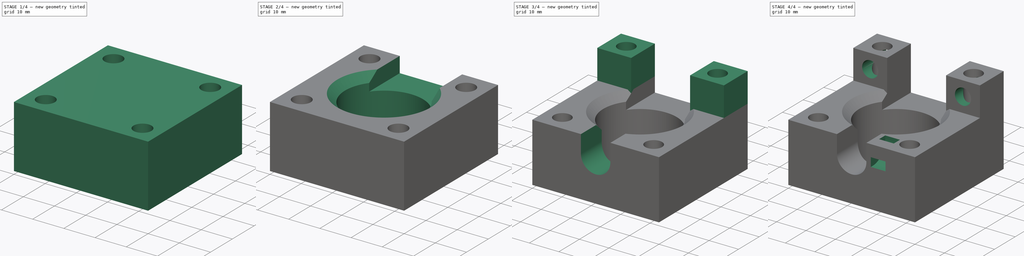
[diagram: build sequence overview — one tinted view per stage of 4, left to right]
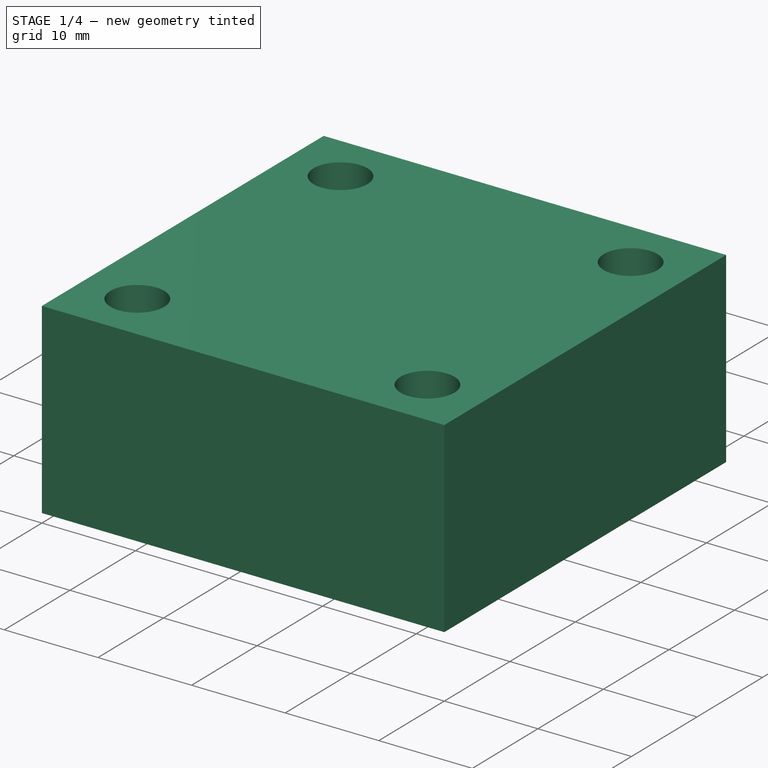
[diagram: stage 1 of 4 — iso view after this stage's code; geometry added in this stage tinted green]
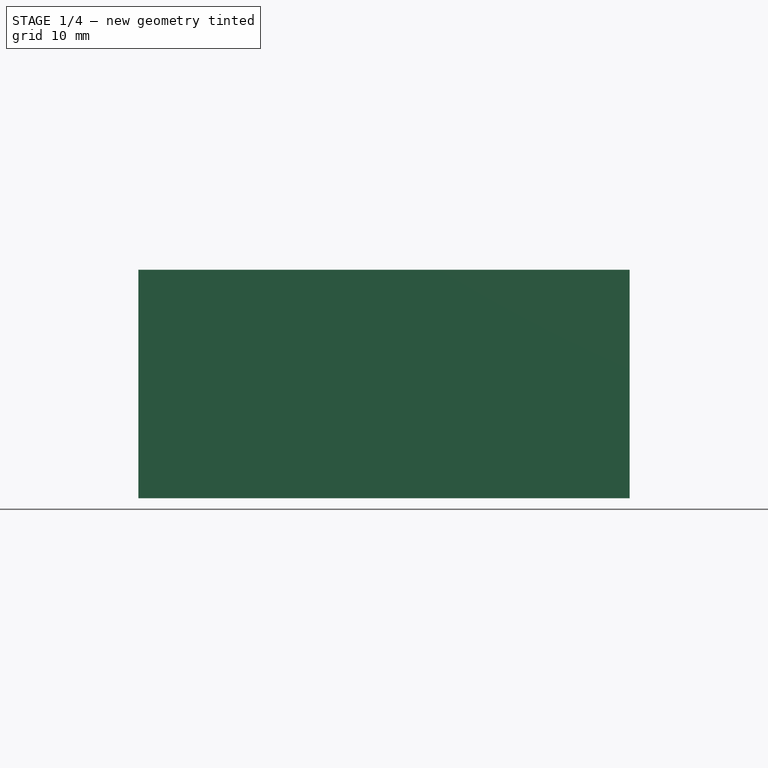
[diagram: stage 1 of 4 — front view after this stage's code; geometry added in this stage tinted green]
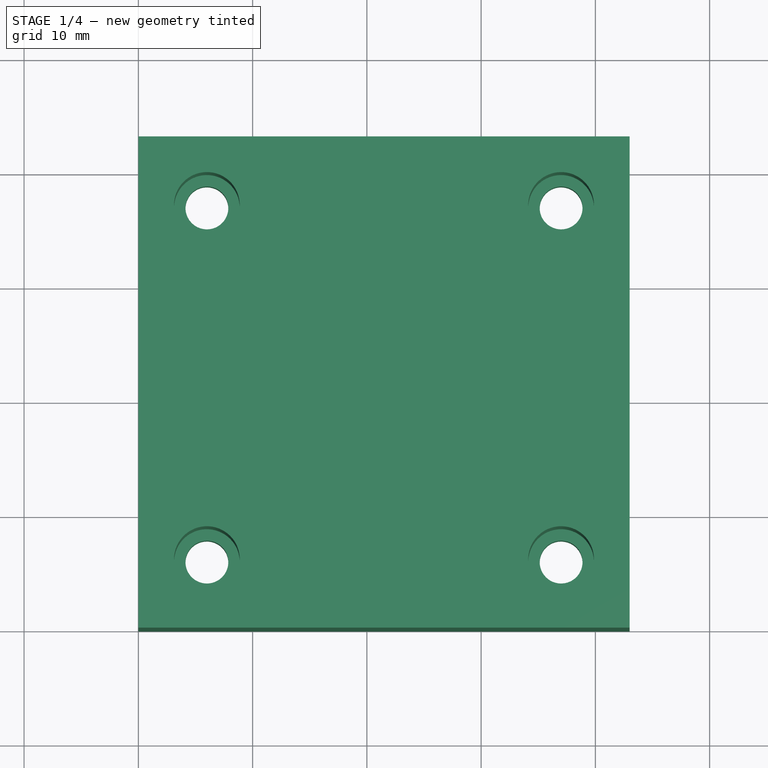
[diagram: stage 1 of 4 — top view after this stage's code; geometry added in this stage tinted green]
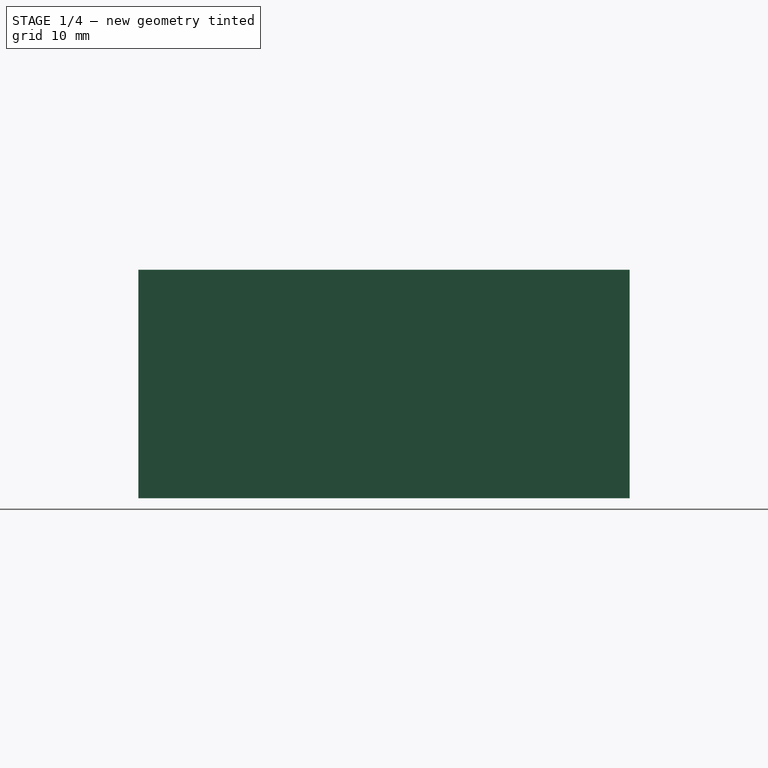
[diagram: stage 1 of 4 — right view after this stage's code; geometry added in this stage tinted green]
FCSTD DOCUMENT  (FreeCAD 0.20R29177 (Git))
Label: Y motor support
License: All rights reserved
LicenseURL: http://en.wikipedia.org/wiki/All_rights_reserved
objects: Sketcher::SketchObject×9, PartDesign::Hole×4, PartDesign::Pocket×3, PartDesign::Pad×2, PartDesign::Body×1
note: 28 computed .brp shape members not serialized (recipe doc carries the construction recipe); baked Part::Feature solids carry a one-line shape summary decoded from their .brp

FEATURE [Sketcher::SketchObject] Sketch
  FullyConstrained = true
  MapMode = 5
  Support = -> [XY_Plane]
  sketch-geometry (4):
    g0: LineSegment StartX=0 StartY=0 StartZ=0 EndX=43 EndY=0 EndZ=0
    g1: LineSegment StartX=43 StartY=0 StartZ=0 EndX=43 EndY=43 EndZ=0
    g2: LineSegment StartX=43 StartY=43 StartZ=0 EndX=0 EndY=43 EndZ=0
    g3: LineSegment StartX=0 StartY=43 StartZ=0 EndX=0 EndY=0 EndZ=0
  constraints (11):
    c: Coincident(g0,g1)
    c: Coincident(g1,g2)
    c: Coincident(g2,g3)
    c: Coincident(g3,g0)
    c: Horizontal(g0)
    c: Horizontal(g2)
    c: Vertical(g1)
    c: Vertical(g3)
    c: Coincident(g0,g-1)
    c: DistanceY(g1,g1) = 43
    c: Equal(g2,g1)
FEATURE [PartDesign::Pad] Pad
  Direction = (1,1,1)
  Length = 20
  Length2 = 100
  Profile = -> Sketch
  Type = 0
FEATURE [Sketcher::SketchObject] Sketch001
  ExternalGeometry = -> [Pad]
  FullyConstrained = false
  MapMode = 5
  Placement = pos=(0,0,20) rot=(0,0,1;0rad)
  Support = -> [Pad]
  sketch-geometry (10):
    g0: LineSegment StartX=6 StartY=37 StartZ=0 EndX=37 EndY=37 EndZ=0
    g1: LineSegment StartX=37 StartY=37 StartZ=0 EndX=37 EndY=6 EndZ=0
    g2: LineSegment StartX=37 StartY=6 StartZ=0 EndX=6 EndY=6 EndZ=0
    g3: LineSegment StartX=6 StartY=6 StartZ=0 EndX=6 EndY=37 EndZ=0
    g4: Circle CenterX=6 CenterY=37 CenterZ=0 NormalX=0 NormalY=0 NormalZ=1 AngleXU=0 Radius=1.89004
    g5: Circle CenterX=37 CenterY=37 CenterZ=0 NormalX=0 NormalY=0 NormalZ=1 AngleXU=0 Radius=1.89004
    g6: Circle CenterX=37 CenterY=6 CenterZ=0 NormalX=0 NormalY=0 NormalZ=1 AngleXU=0 Radius=1.89004
    g7: Circle CenterX=6 CenterY=6 CenterZ=0 NormalX=0 NormalY=0 NormalZ=1 AngleXU=0 Radius=1.89004
    g8: LineSegment StartX=0 StartY=43 StartZ=0 EndX=6 EndY=37 EndZ=0
    g9: LineSegment StartX=37 StartY=6 StartZ=0 EndX=43 EndY=0 EndZ=0
  constraints (23):
    c: Coincident(g0,g1)
    c: Coincident(g1,g2)
    c: Coincident(g2,g3)
    c: Coincident(g3,g0)
    c: Horizontal(g0)
    c: Horizontal(g2)
    c: Vertical(g1)
    c: Vertical(g3)
    c: Coincident(g4,g0)
    c: Coincident(g5,g0)
    c: Coincident(g6,g1)
    c: Coincident(g7,g2)
    c: Equal(g5,g7)
    c: Equal(g4,g6)
    c: Equal(g4,g5)
    c: Coincident(g8,g-3)
    c: Coincident(g8,g4)
    c: Coincident(g9,g6)
    c: Coincident(g9,g-4)
    c: Equal(g9,g8)
    c: Parallel(g8,g9)
    c: Equal(g1,g0)
    c: DistanceY(g3,g3) = 31
FEATURE [PartDesign::Hole] Hole  label="Hole 4x"
  BaseFeature = -> Pad
  CustomThreadClearance = 0
  Depth = 25
  DepthType = 1
  Diameter = 3.75
  DrillForDepth = false
  DrillPoint = 1
  DrillPointAngle = 118
  HoleCutCountersinkAngle = 90
  HoleCutCustomValues = false
  HoleCutDepth = 15
  HoleCutDiameter = 5.75
  HoleCutType = 1
  ModelThread = false
  Profile = -> Sketch001
  Tapered = false
  TaperedAngle = 90
  ThreadClass = 0
  ThreadDepth = 23.5
  ThreadDepthType = 0
  ThreadDirection = 0
  ThreadFit = 0
  ThreadSize = 0
  ThreadType = 0
  Threaded = false
  UseCustomThreadClearance = false
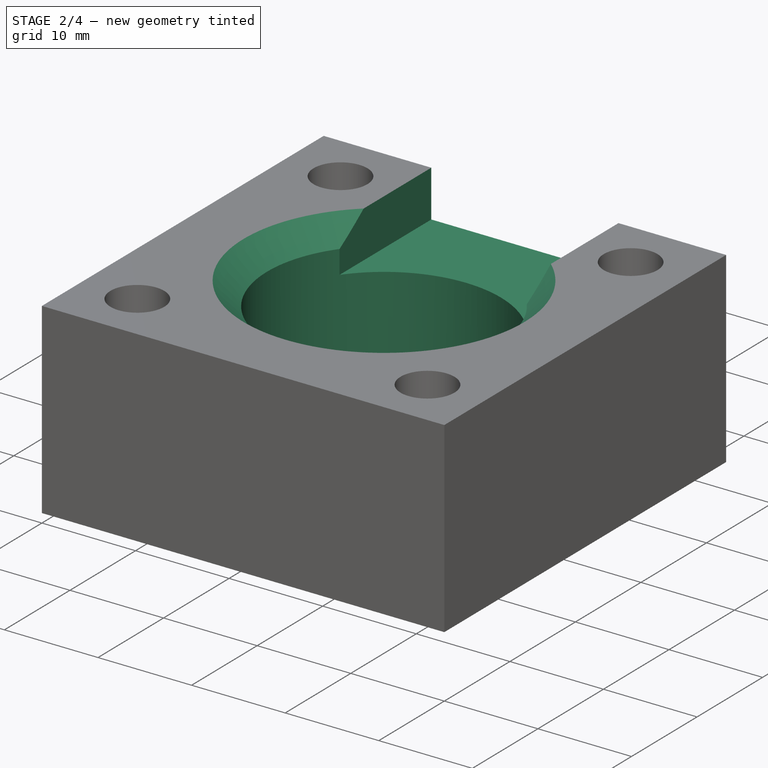
[diagram: stage 2 of 4 — iso view after this stage's code; geometry added in this stage tinted green]
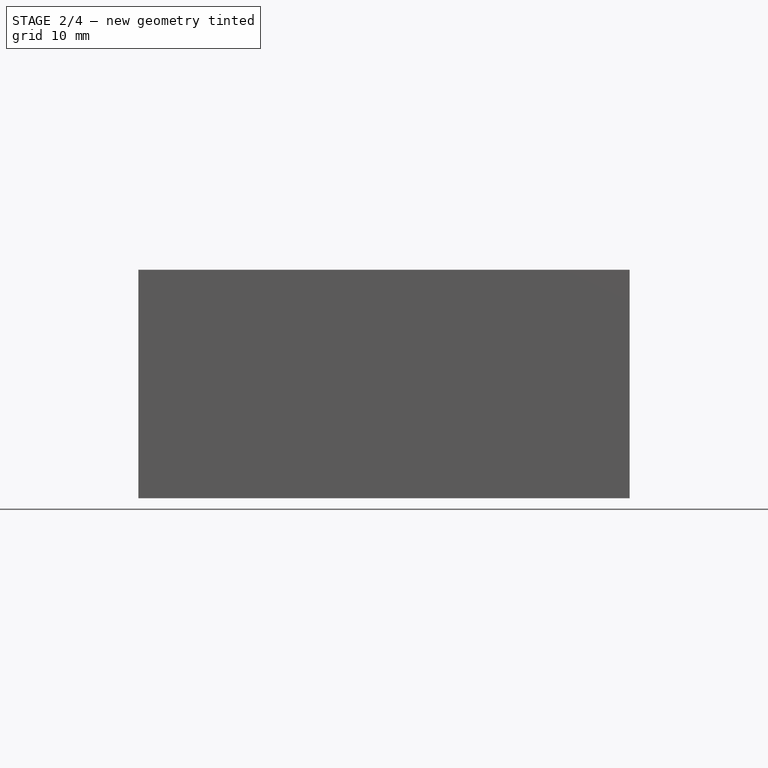
[diagram: stage 2 of 4 — front view after this stage's code; geometry added in this stage tinted green]
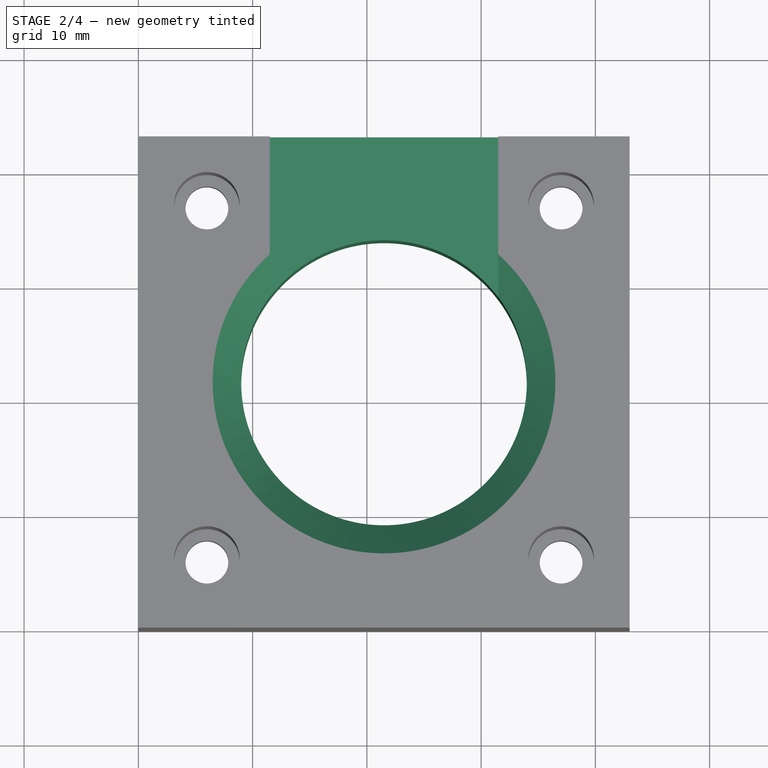
[diagram: stage 2 of 4 — top view after this stage's code; geometry added in this stage tinted green]
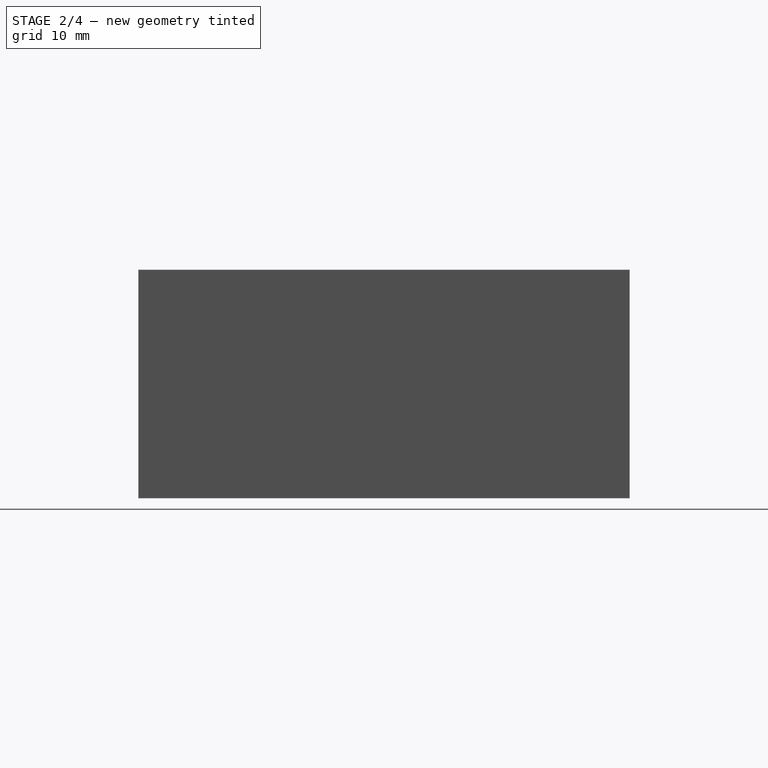
[diagram: stage 2 of 4 — right view after this stage's code; geometry added in this stage tinted green]
FEATURE [Sketcher::SketchObject] Sketch002
  ExternalGeometry = -> [Hole]
  FullyConstrained = false
  MapMode = 5
  Placement = pos=(0,0,20) rot=(0,0,1;0rad)
  Support = -> [Hole]
  sketch-geometry (3):
    g0: LineSegment StartX=0 StartY=0 StartZ=0 EndX=21.5 EndY=21.5 EndZ=0
    g1: LineSegment StartX=21.5 StartY=21.5 StartZ=0 EndX=43 EndY=43 EndZ=0
    g2: Circle CenterX=21.5 CenterY=21.5 CenterZ=0 NormalX=0 NormalY=0 NormalZ=1 AngleXU=0 Radius=5.8632
  constraints (6):
    c: Coincident(g0,g-1)
    c: Coincident(g1,g0)
    c: Coincident(g1,g-3)
    c: Parallel(g1,g0)
    c: Equal(g1,g0)
    c: Coincident(g2,g0)
FEATURE [PartDesign::Hole] Hole001  label="Hole big"
  BaseFeature = -> Hole
  CustomThreadClearance = 0
  Depth = 25
  DepthType = 1
  Diameter = 25
  DrillForDepth = false
  DrillPoint = 1
  DrillPointAngle = 118
  HoleCutCountersinkAngle = 90
  HoleCutCustomValues = false
  HoleCutDepth = 0
  HoleCutDiameter = 30
  HoleCutType = 2
  ModelThread = false
  Profile = -> Sketch002
  Tapered = false
  TaperedAngle = 90
  ThreadClass = 0
  ThreadDepth = 23.5
  ThreadDepthType = 0
  ThreadDirection = 0
  ThreadFit = 0
  ThreadSize = 0
  ThreadType = 0
  Threaded = false
  UseCustomThreadClearance = false
FEATURE [Sketcher::SketchObject] Sketch003
  ExternalGeometry = -> [Hole001]
  FullyConstrained = false
  MapMode = 5
  Placement = pos=(0,0,20) rot=(0,0,1;0rad)
  Support = -> [Hole001]
  sketch-geometry (6):
    g0: LineSegment StartX=11.5 StartY=17.814 StartZ=0 EndX=31.5 EndY=17.814 EndZ=0
    g1: LineSegment StartX=31.5 StartY=17.814 StartZ=0 EndX=31.5 EndY=50.5102 EndZ=0
    g2: LineSegment StartX=31.5 StartY=50.5102 StartZ=0 EndX=11.5 EndY=50.5102 EndZ=0
    g3: LineSegment StartX=11.5 StartY=50.5102 StartZ=0 EndX=11.5 EndY=17.814 EndZ=0
    g4: LineSegment StartX=0 StartY=0 StartZ=0 EndX=11.5 EndY=17.814 EndZ=0
    g5: LineSegment StartX=31.5 StartY=17.814 StartZ=0 EndX=43 EndY=0 EndZ=0
  constraints (14):
    c: Coincident(g0,g1)
    c: Coincident(g1,g2)
    c: Coincident(g2,g3)
    c: Coincident(g3,g0)
    c: Horizontal(g0)
    c: Horizontal(g2)
    c: Vertical(g1)
    c: Vertical(g3)
    c: Coincident(g4,g-1)
    c: Coincident(g4,g0)
    c: Coincident(g5,g0)
    c: Coincident(g5,g-3)
    c: Equal(g5,g4)
    c: DistanceX(g0,g0) = 20
FEATURE [PartDesign::Pocket] Pocket
  BaseFeature = -> Hole001
  Direction = (1,1,1)
  Length = 5
  Length2 = 100
  Profile = -> Sketch003
  Type = 0
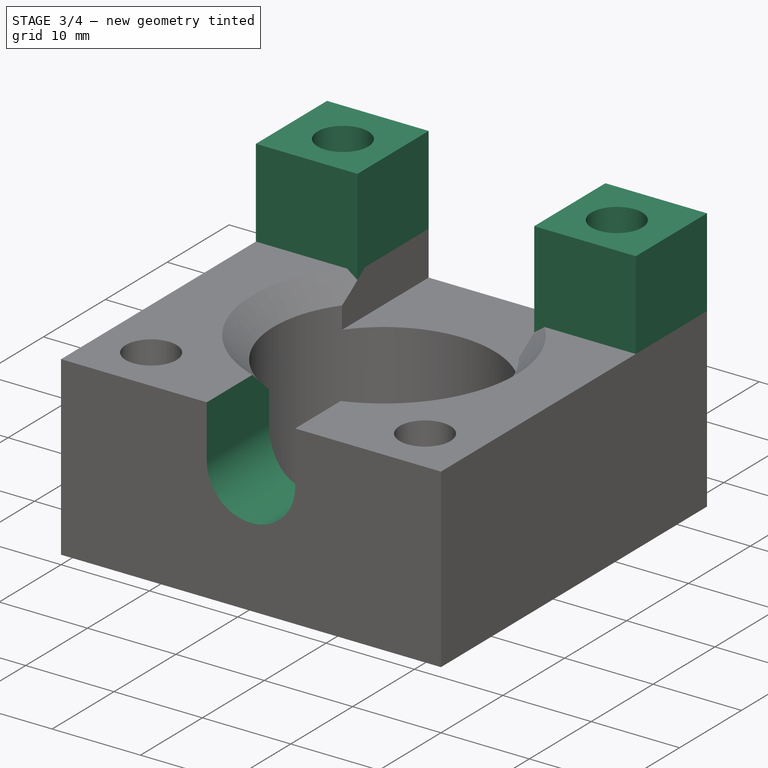
[diagram: stage 3 of 4 — iso view after this stage's code; geometry added in this stage tinted green]
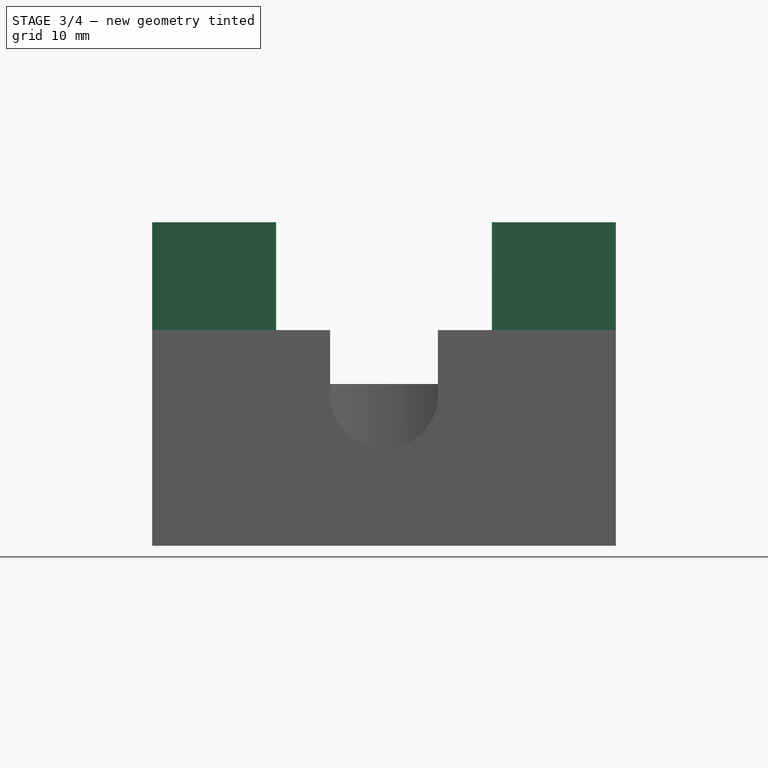
[diagram: stage 3 of 4 — front view after this stage's code; geometry added in this stage tinted green]
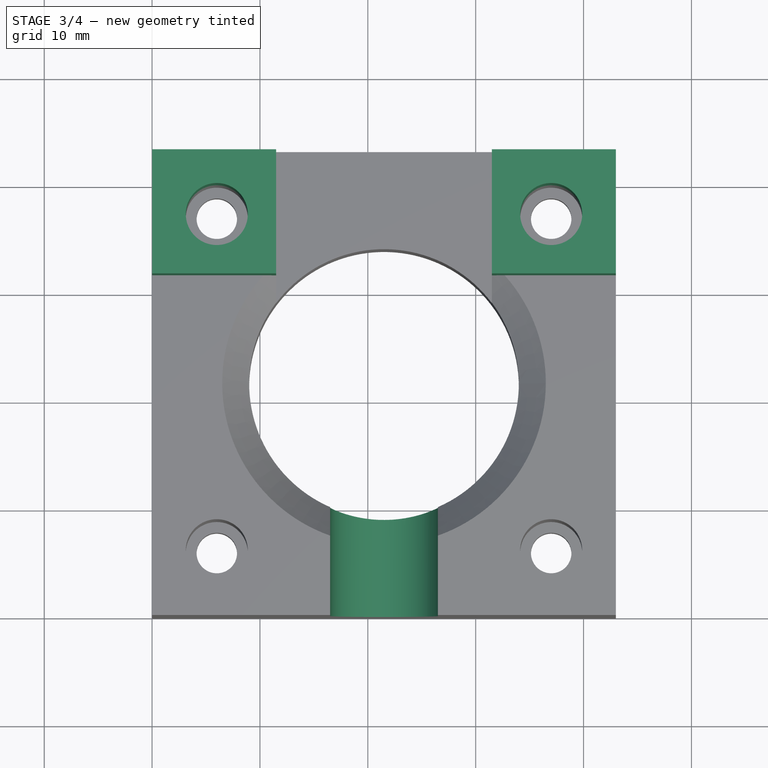
[diagram: stage 3 of 4 — top view after this stage's code; geometry added in this stage tinted green]
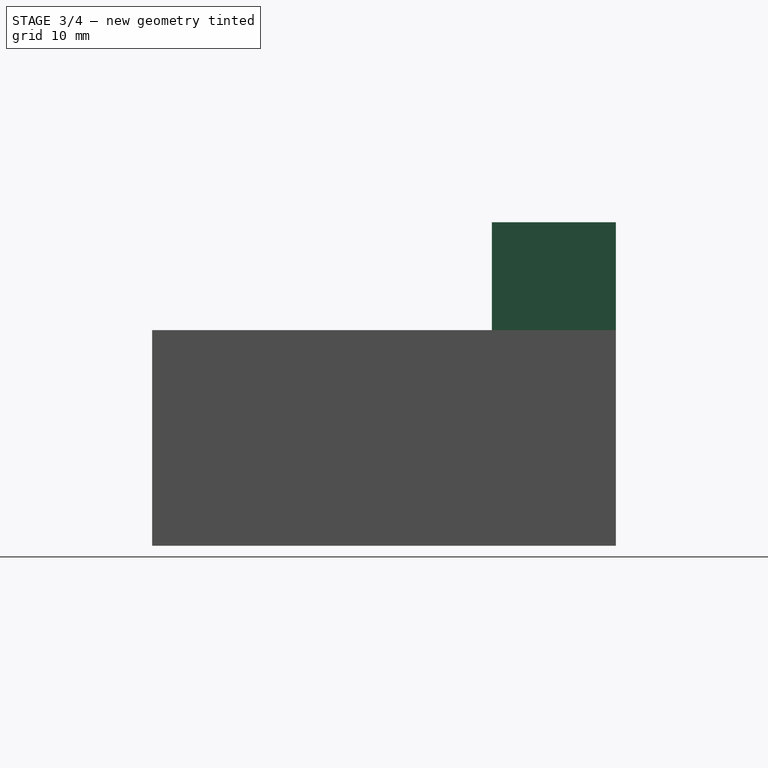
[diagram: stage 3 of 4 — right view after this stage's code; geometry added in this stage tinted green]
FEATURE [Sketcher::SketchObject] Sketch004
  ExternalGeometry = -> [Pocket]
  FullyConstrained = true
  MapMode = 5
  Placement = pos=(0,0,0) rot=(1,0,0;1.5708rad)
  Support = -> [Pocket]
  sketch-geometry (6):
    g0: ArcOfCircle CenterX=21.5 CenterY=14 CenterZ=0 NormalX=0 NormalY=0 NormalZ=1 AngleXU=0 Radius=5 StartAngle=3.14159 EndAngle=6.28319
    g1: LineSegment StartX=16.5 StartY=20 StartZ=0 EndX=16.5 EndY=14 EndZ=0
    g2: LineSegment StartX=26.5 StartY=20 StartZ=0 EndX=26.5 EndY=14 EndZ=0
    g3: LineSegment StartX=0 StartY=20 StartZ=0 EndX=21.5 EndY=14 EndZ=0
    g4: LineSegment StartX=21.5 StartY=14 StartZ=0 EndX=43 EndY=20 EndZ=0
    g5: LineSegment StartX=16.5 StartY=20 StartZ=0 EndX=26.5 EndY=20 EndZ=0
  constraints (16):
    c: Tangent(g1,g0) = -1.5708
    c: Tangent(g2,g0) = 1.5708
    c: Vertical(g1)
    c: DistanceY(g0,g-3) = 6
    c: Coincident(g3,g-3)
    c: Coincident(g3,g0)
    c: Coincident(g4,g0)
    c: Coincident(g4,g-3)
    c: Equal(g4,g3)
    c: Vertical(g2)
    c: PointOnObject(g5,g-3)
    c: Coincident(g1,g5)
    c: PointOnObject(g2,g5)
    c: Diameter(g0) = 10
    c: PointOnObject(g5,g2)
    c: Horizontal(g5)
FEATURE [PartDesign::Pocket] Pocket001
  BaseFeature = -> Pocket
  Direction = (1,1,1)
  Length = 25
  Length2 = 100
  Profile = -> Sketch004
  Type = 0
FEATURE [Sketcher::SketchObject] Sketch005
  ExternalGeometry = -> [Pocket001]
  FullyConstrained = true
  MapMode = 5
  Placement = pos=(0,0,20) rot=(0,0,1;0rad)
  Support = -> [Pocket001]
  sketch-geometry (8):
    g0: LineSegment StartX=0 StartY=43 StartZ=0 EndX=11.5 EndY=43 EndZ=0
    g1: LineSegment StartX=11.5 StartY=43 StartZ=0 EndX=11.5 EndY=31.5 EndZ=0
    g2: LineSegment StartX=11.5 StartY=31.5 StartZ=0 EndX=0 EndY=31.5 EndZ=0
    g3: LineSegment StartX=0 StartY=31.5 StartZ=0 EndX=0 EndY=43 EndZ=0
    g4: LineSegment StartX=43 StartY=43 StartZ=0 EndX=31.5 EndY=43 EndZ=0
    g5: LineSegment StartX=31.5 StartY=43 StartZ=0 EndX=31.5 EndY=31.5 EndZ=0
    g6: LineSegment StartX=31.5 StartY=31.5 StartZ=0 EndX=43 EndY=31.5 EndZ=0
    g7: LineSegment StartX=43 StartY=31.5 StartZ=0 EndX=43 EndY=43 EndZ=0
  constraints (22):
    c: Coincident(g0,g1)
    c: Coincident(g1,g2)
    c: Coincident(g2,g3)
    c: Coincident(g3,g0)
    c: Horizontal(g0)
    c: Horizontal(g2)
    c: Vertical(g1)
    c: Vertical(g3)
    c: Coincident(g0,g-3)
    c: Coincident(g4,g5)
    c: Coincident(g5,g6)
    c: Coincident(g6,g7)
    c: Coincident(g7,g4)
    c: Horizontal(g4)
    c: Horizontal(g6)
    c: Vertical(g5)
    c: Vertical(g7)
    c: Coincident(g4,g-4)
    c: PointOnObject(g-5,g1)
    c: Equal(g2,g1)
    c: Equal(g5,g1)
    c: Equal(g6,g2)
FEATURE [PartDesign::Pad] Pad001
  BaseFeature = -> Pocket001
  Direction = (1,1,1)
  Length = 10
  Length2 = 2
  Profile = -> Sketch005
  Type = 4
FEATURE [Sketcher::SketchObject] Sketch006
  ExternalGeometry = -> [Pad001]
  FullyConstrained = true
  MapMode = 5
  Placement = pos=(0,0,30) rot=(0,0,1;0rad)
  Support = -> [Pad001]
  sketch-geometry (2):
    g0: Circle CenterX=6 CenterY=37 CenterZ=0 NormalX=0 NormalY=0 NormalZ=1 AngleXU=0 Radius=1.875
    g1: Circle CenterX=37 CenterY=37 CenterZ=0 NormalX=0 NormalY=0 NormalZ=1 AngleXU=0 Radius=1.875
  constraints (4):
    c: Coincident(g0,g-3)
    c: Coincident(g1,g-4)
    c: Equal(g-4,g1)
    c: Equal(g-3,g0)
FEATURE [PartDesign::Hole] Hole002  label="Hole back"
  BaseFeature = -> Pad001
  CustomThreadClearance = 0
  Depth = 25
  DepthType = 1
  Diameter = 3.75
  DrillForDepth = false
  DrillPoint = 1
  DrillPointAngle = 118
  HoleCutCountersinkAngle = 90
  HoleCutCustomValues = false
  HoleCutDepth = 15
  HoleCutDiameter = 5.75
  HoleCutType = 1
  ModelThread = false
  Profile = -> Sketch006
  Tapered = false
  TaperedAngle = 90
  ThreadClass = 0
  ThreadDepth = 23.5
  ThreadDepthType = 0
  ThreadDirection = 0
  ThreadFit = 0
  ThreadSize = 0
  ThreadType = 0
  Threaded = false
  UseCustomThreadClearance = false
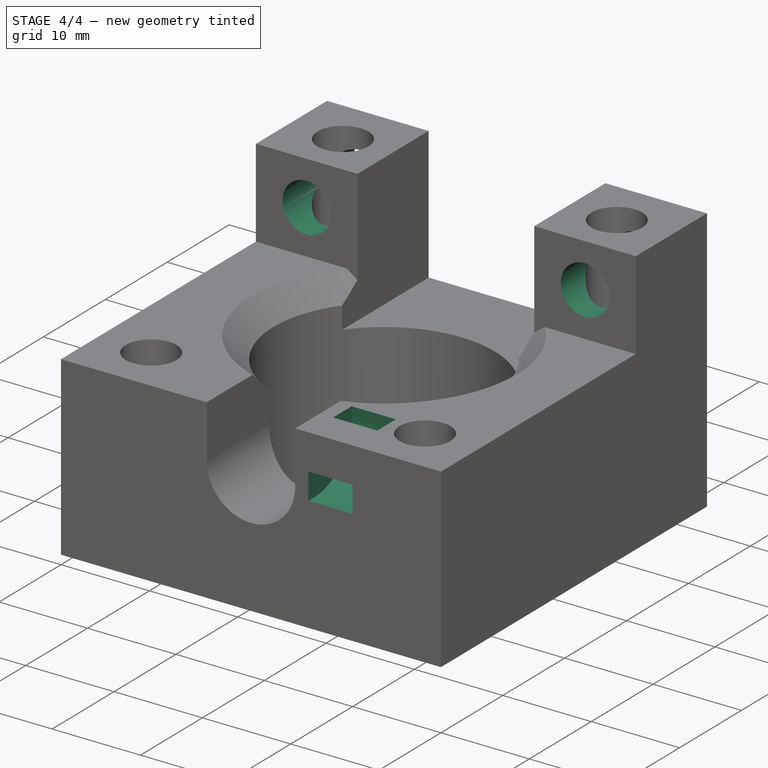
[diagram: stage 4 of 4 — iso view after this stage's code; geometry added in this stage tinted green]
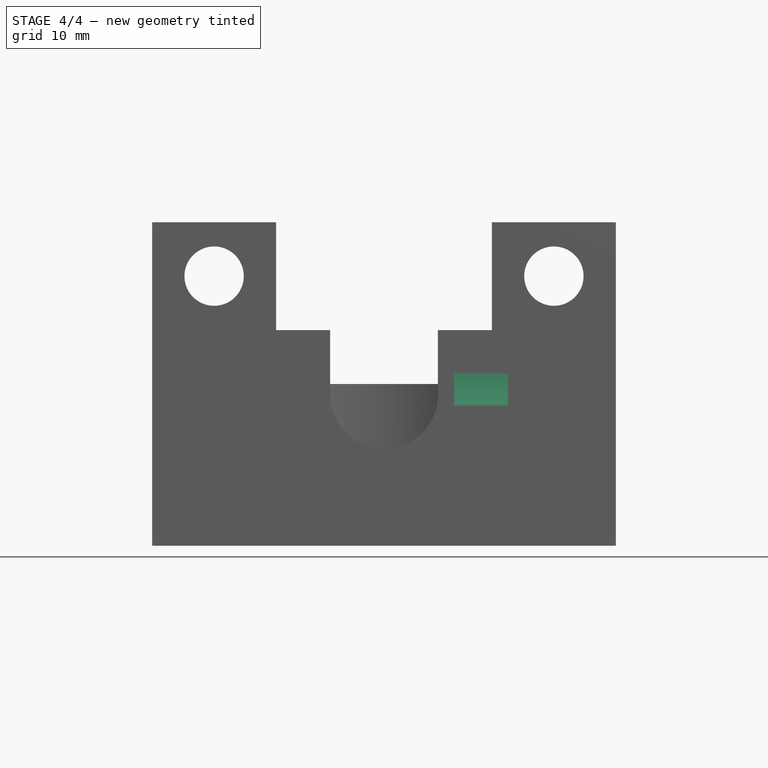
[diagram: stage 4 of 4 — front view after this stage's code; geometry added in this stage tinted green]
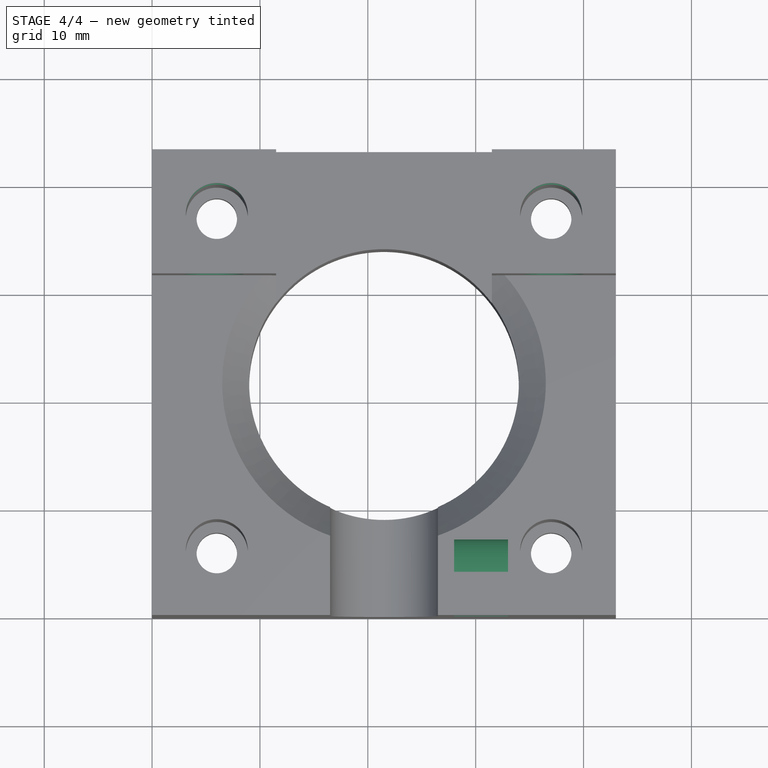
[diagram: stage 4 of 4 — top view after this stage's code; geometry added in this stage tinted green]
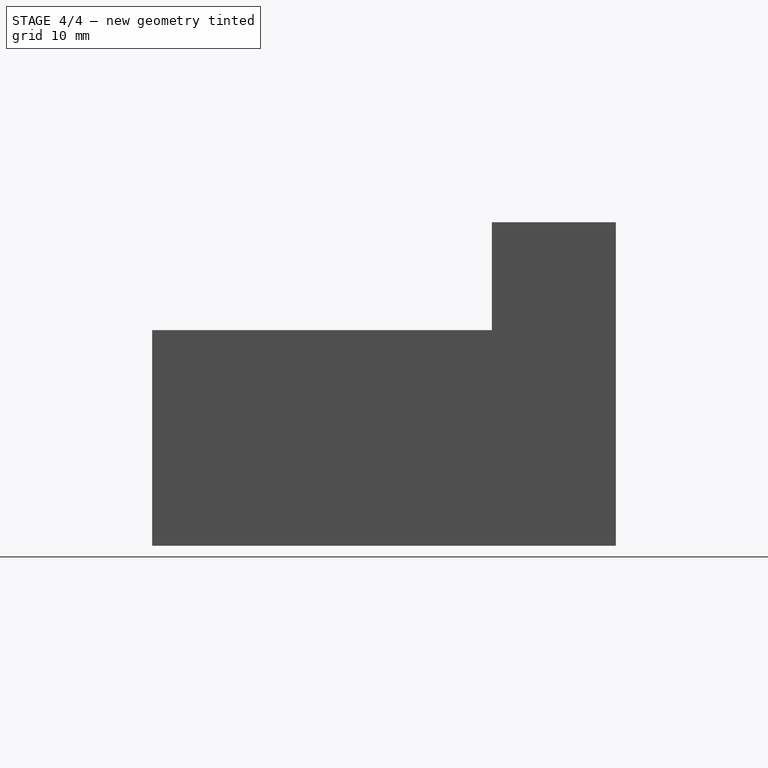
[diagram: stage 4 of 4 — right view after this stage's code; geometry added in this stage tinted green]
FEATURE [Sketcher::SketchObject] Sketch007
  ExternalGeometry = -> [Hole002]
  FullyConstrained = false
  MapMode = 5
  Placement = pos=(0,31.5,0) rot=(1,0,0;1.5708rad)
  Support = -> [Hole002]
  sketch-geometry (7):
    g0: Circle CenterX=5.75 CenterY=25 CenterZ=0 NormalX=0 NormalY=0 NormalZ=1 AngleXU=0 Radius=1.63291
    g1: Circle CenterX=37.25 CenterY=25 CenterZ=0 NormalX=0 NormalY=0 NormalZ=1 AngleXU=0 Radius=1.63291
    g2: LineSegment StartX=5.75 StartY=25 StartZ=0 EndX=0 EndY=25 EndZ=0
    g3: LineSegment StartX=5.75 StartY=25 StartZ=0 EndX=0 EndY=20 EndZ=0
    g4: LineSegment StartX=5.75 StartY=25 StartZ=0 EndX=0 EndY=30 EndZ=0
    g5: LineSegment StartX=37.25 StartY=25 StartZ=0 EndX=43 EndY=30 EndZ=0
    g6: LineSegment StartX=5.75 StartY=25 StartZ=0 EndX=11.5 EndY=30 EndZ=0
  constraints (16):
    c: Equal(g1,g0)
    c: Coincident(g2,g0)
    c: Horizontal(g2)
    c: PointOnObject(g2,g-2)
    c: Coincident(g3,g0)
    c: Coincident(g3,g-4)
    c: Coincident(g4,g0)
    c: Coincident(g4,g-3)
    c: Equal(g3,g4)
    c: Coincident(g5,g1)
    c: Coincident(g5,g-5)
    c: Equal(g5,g4)
    c: Coincident(g6,g0)
    c: Coincident(g6,g-6)
    c: Equal(g4,g6)
    c: Parallel(g6,g5)
FEATURE [PartDesign::Hole] Hole003  label="Hole mounting"
  BaseFeature = -> Hole002
  CustomThreadClearance = 0
  Depth = 136.973
  DepthType = 1
  Diameter = 5.5
  DrillForDepth = false
  DrillPoint = 1
  DrillPointAngle = 118
  HoleCutCountersinkAngle = 90
  HoleCutCustomValues = false
  HoleCutDepth = 2.7
  HoleCutDiameter = 5.6
  HoleCutType = 0
  ModelThread = false
  Profile = -> Sketch007
  Tapered = false
  TaperedAngle = 90
  ThreadClass = 0
  ThreadDepth = 136.973
  ThreadDepthType = 0
  ThreadDirection = 0
  ThreadFit = 0
  ThreadSize = 0
  ThreadType = 0
  Threaded = false
  UseCustomThreadClearance = false
FEATURE [Sketcher::SketchObject] Sketch008
  AttachmentOffset = pos=(0,0,30.5) rot=(0,0,1;0rad)
  ExternalGeometry = -> [Hole003]
  FullyConstrained = false
  MapMode = 5
  Placement = pos=(30.5,-6.8e-15,6.8e-15) rot=(0.57735,0.57735,0.57735;2.0944rad)
  Support = -> [YZ_Plane]
  sketch-geometry (11):
    g0: GeomPoint X=-34.6627 Y=-38.8145 Z=0
    g1: LineSegment StartX=7 StartY=20 StartZ=0 EndX=7 EndY=19 EndZ=0
    g2: ArcOfCircle CenterX=1 CenterY=19 CenterZ=0 NormalX=0 NormalY=0 NormalZ=1 AngleXU=0 Radius=6 StartAngle=4.71239 EndAngle=6.28319
    g3: LineSegment StartX=1 StartY=13 StartZ=0 EndX=3.3e-15 EndY=13 EndZ=0
    g4: GeomPoint X=7 Y=13 Z=0
    g5: LineSegment StartX=4 StartY=20 StartZ=0 EndX=4 EndY=19 EndZ=0
    g6: ArcOfCircle CenterX=1 CenterY=19 CenterZ=0 NormalX=0 NormalY=0 NormalZ=1 AngleXU=0 Radius=3 StartAngle=4.71239 EndAngle=6.28319
    g7: LineSegment StartX=1 StartY=16 StartZ=0 EndX=3.3e-15 EndY=16 EndZ=0
    g8: GeomPoint X=4 Y=16 Z=0
    g9: LineSegment StartX=4 StartY=20 StartZ=0 EndX=7 EndY=20 EndZ=0
    g10: LineSegment StartX=3.3e-15 StartY=16 StartZ=0 EndX=3.3e-15 EndY=13 EndZ=0
  constraints (25):
    c: Coincident(g9,g1) = 1.5708
    c: Tangent(g1,g2) = 1.5708
    c: Tangent(g2,g3) = 1.5708
    c: Horizontal(g3)
    c: Vertical(g1)
    c: PointOnObject(g4,g1)
    c: PointOnObject(g4,g3)
    c: Coincident(g9,g5) = 1.5708
    c: Tangent(g5,g6) = 1.5708
    c: Tangent(g6,g7) = 1.5708
    c: Horizontal(g7)
    c: Vertical(g5)
    c: PointOnObject(g8,g5)
    c: PointOnObject(g8,g7)
    c: Coincident(g6,g2)
    c: Radius(g6) = 3
    c: Coincident(g10,g7)
    c: Coincident(g10,g3)
    c: Horizontal(g9)
    c: Vertical(g10)
    c: DistanceX(g9,g9) = 3
    c: PointOnObject(g-3,g10)
    c: PointOnObject(g-3,g9)
    c: DistanceX(g-3,g5) = 4
    c: Equal(g5,g7)
FEATURE [PartDesign::Pocket] Pocket002  label="Tiewrap"
  BaseFeature = -> Hole003
  Direction = (-1,2e-16,-3e-16)
  Length = 5
  Length2 = 5
  Midplane = true
  Profile = -> Sketch008
  ReferenceAxis = -> Sketch008 [N_Axis]
  Type = 0
FEATURE [PartDesign::Body] Body
  Group = -> [Sketch,Pad,Sketch001,Hole,Sketch002,Hole001,Sketch003,Pocket,Sketch004,Pocket001,Sketch005,Pad001,Sketch006,Hole002,Sketch007,Hole003,Sketch008,Pocket002]
  Origin = -> Origin
  Tip = -> Pocket002
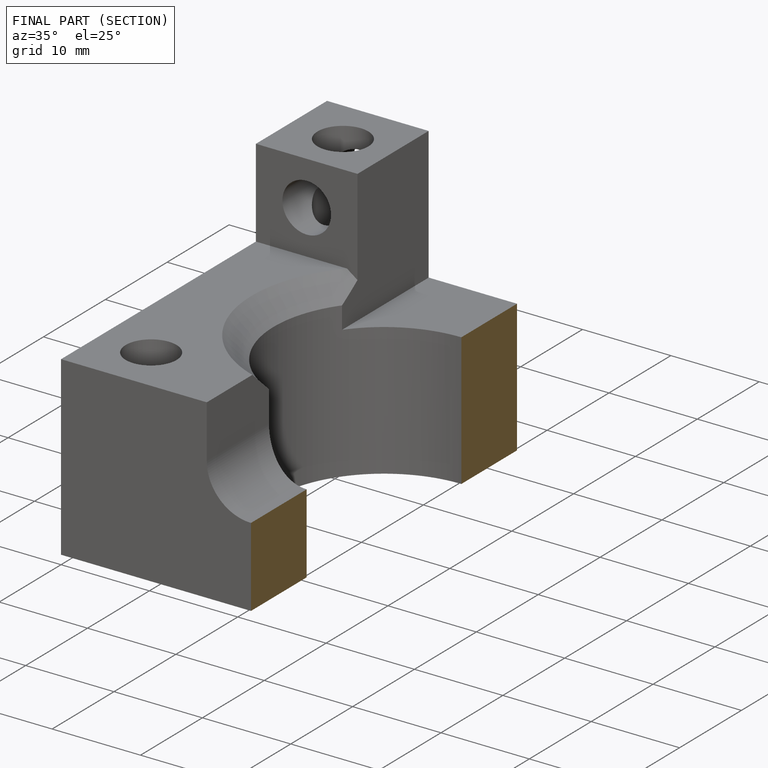
[diagram: finished part — half-section view (interior)]
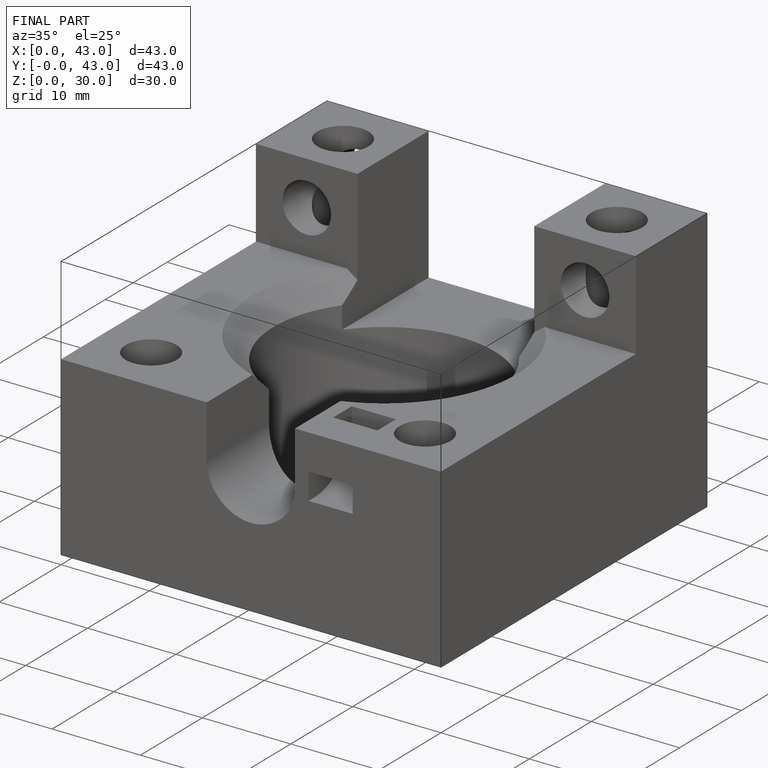
[diagram: finished part — iso view with bounding-box wireframe]
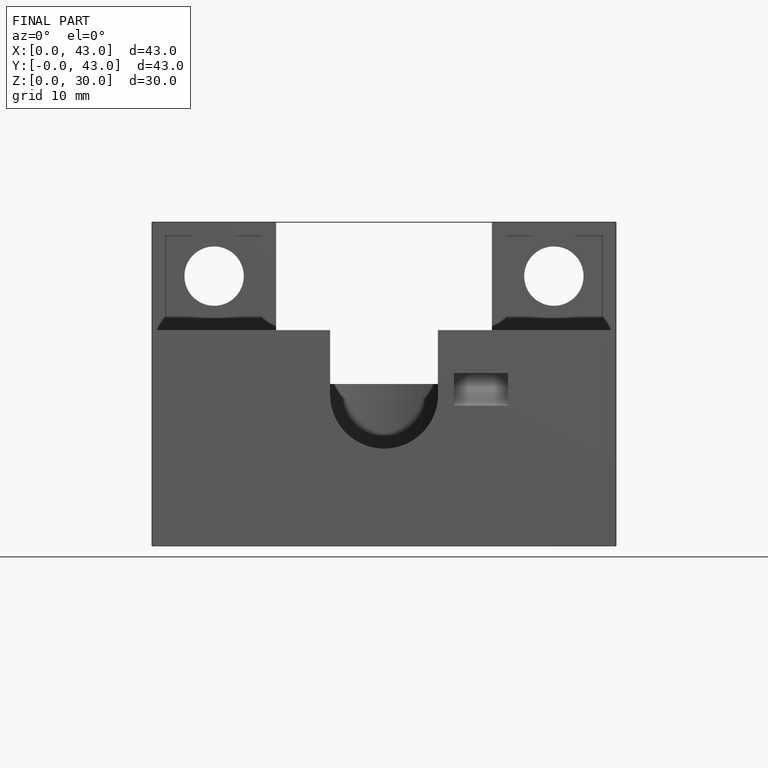
[diagram: finished part — front view with bounding-box wireframe]
